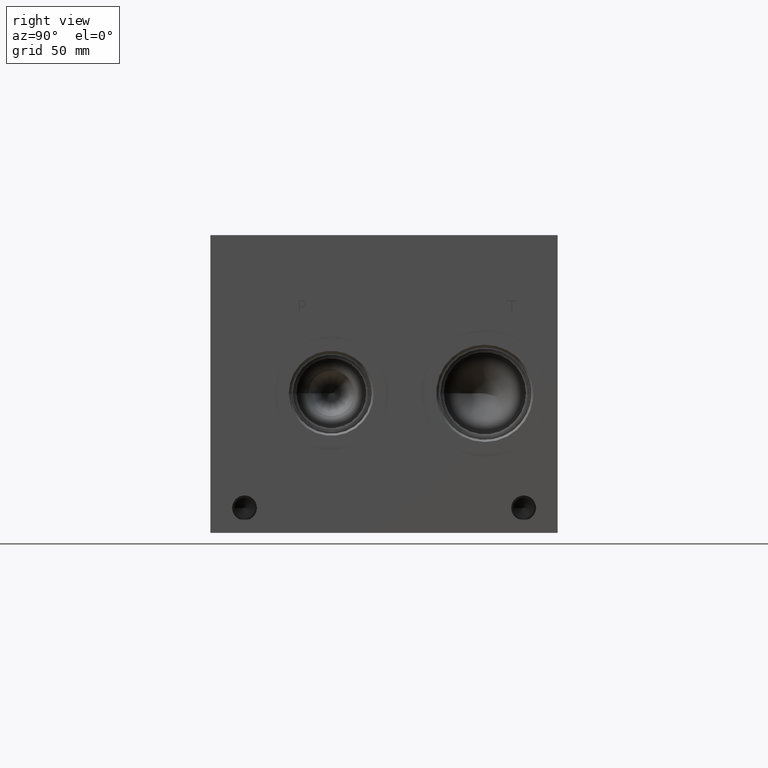
[diagram: clean part render]
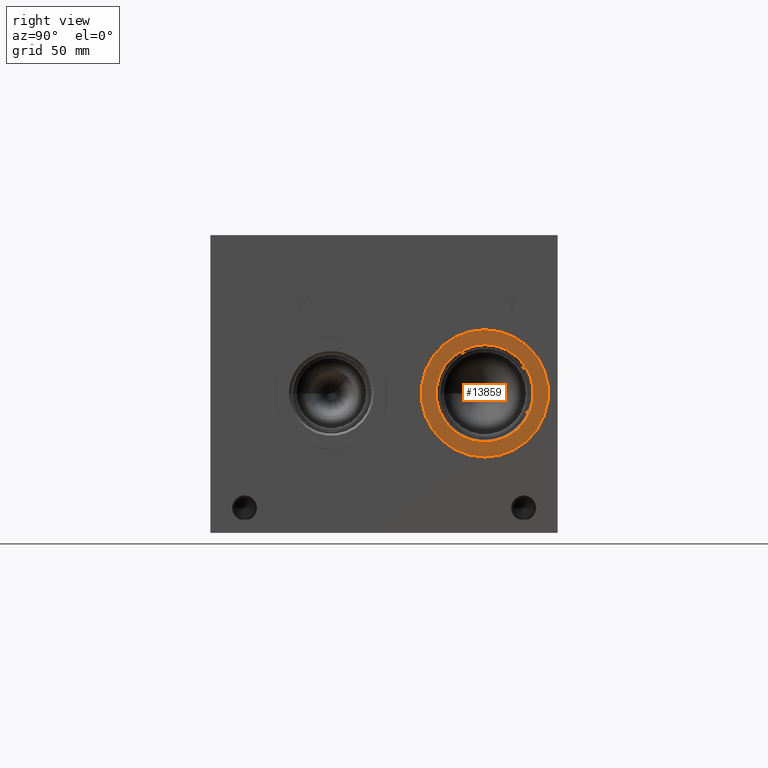
[diagram: same view with one face highlighted and labeled with its STEP entity id]
A machine part, right view. The second image highlights one B-rep face of the part: STEP entity #13859.
In plain terms, the highlighted planar face has unit normal (-1, 0, 0).
Its self-contained STEP definition (entity closure, byte-faithful):
#288=CIRCLE('',#14536,32.5628);
#289=CIRCLE('',#14537,32.5628);
#290=CIRCLE('',#14539,24.9047);
#291=CIRCLE('',#14540,24.9047);
#1129=FACE_BOUND('',#2545,.T.);
#1742=FACE_OUTER_BOUND('',#2544,.T.);
#2544=EDGE_LOOP('',(#11550,#11551));
#2545=EDGE_LOOP('',(#11552,#11553));
#6285=VERTEX_POINT('',#23363);
#6286=VERTEX_POINT('',#23365);
#6287=VERTEX_POINT('',#23369);
#6288=VERTEX_POINT('',#23370);
#8124=EDGE_CURVE('',#6285,#6286,#288,.T.);
#8125=EDGE_CURVE('',#6286,#6285,#289,.T.);
#8126=EDGE_CURVE('',#6287,#6288,#290,.T.);
#8127=EDGE_CURVE('',#6288,#6287,#291,.T.);
#11550=ORIENTED_EDGE('',*,*,#8125,.F.);
#11551=ORIENTED_EDGE('',*,*,#8124,.F.);
#11552=ORIENTED_EDGE('',*,*,#8126,.T.);
#11553=ORIENTED_EDGE('',*,*,#8127,.T.);
#12773=PLANE('',#14538);
#13859=ADVANCED_FACE('',(#1742,#1129),#12773,.F.);
#14536=AXIS2_PLACEMENT_3D('',#23366,#17068,#17069);
#14537=AXIS2_PLACEMENT_3D('',#23367,#17070,#17071);
#14538=AXIS2_PLACEMENT_3D('',#23368,#17072,#17073);
#14539=AXIS2_PLACEMENT_3D('',#23371,#17074,#17075);
#14540=AXIS2_PLACEMENT_3D('',#23372,#17076,#17077);
#17068=DIRECTION('center_axis',(-1.,0.,0.));
#17069=DIRECTION('ref_axis',(0.,0.,1.));
#17070=DIRECTION('center_axis',(-1.,0.,0.));
#17071=DIRECTION('ref_axis',(0.,0.,1.));
#17072=DIRECTION('center_axis',(-1.,0.,0.));
#17073=DIRECTION('ref_axis',(0.,0.,1.));
#17074=DIRECTION('center_axis',(-1.,0.,0.));
#17075=DIRECTION('ref_axis',(0.,0.,1.));
#17076=DIRECTION('center_axis',(-1.,0.,0.));
#17077=DIRECTION('ref_axis',(0.,0.,1.));
#23363=CARTESIAN_POINT('',(291.3126,140.4874,103.9876));
#23365=CARTESIAN_POINT('',(291.3126,140.4874,38.862));
#23366=CARTESIAN_POINT('Origin',(291.3126,140.4874,71.4248));
#23367=CARTESIAN_POINT('Origin',(291.3126,140.4874,71.4248));
#23368=CARTESIAN_POINT('Origin',(291.3126,140.4874,46.5201));
#23369=CARTESIAN_POINT('',(291.3126,140.4874,46.5201));
#23370=CARTESIAN_POINT('',(291.3126,140.4874,96.3295));
#23371=CARTESIAN_POINT('Origin',(291.3126,140.4874,71.4248));
#23372=CARTESIAN_POINT('Origin',(291.3126,140.4874,71.4248));